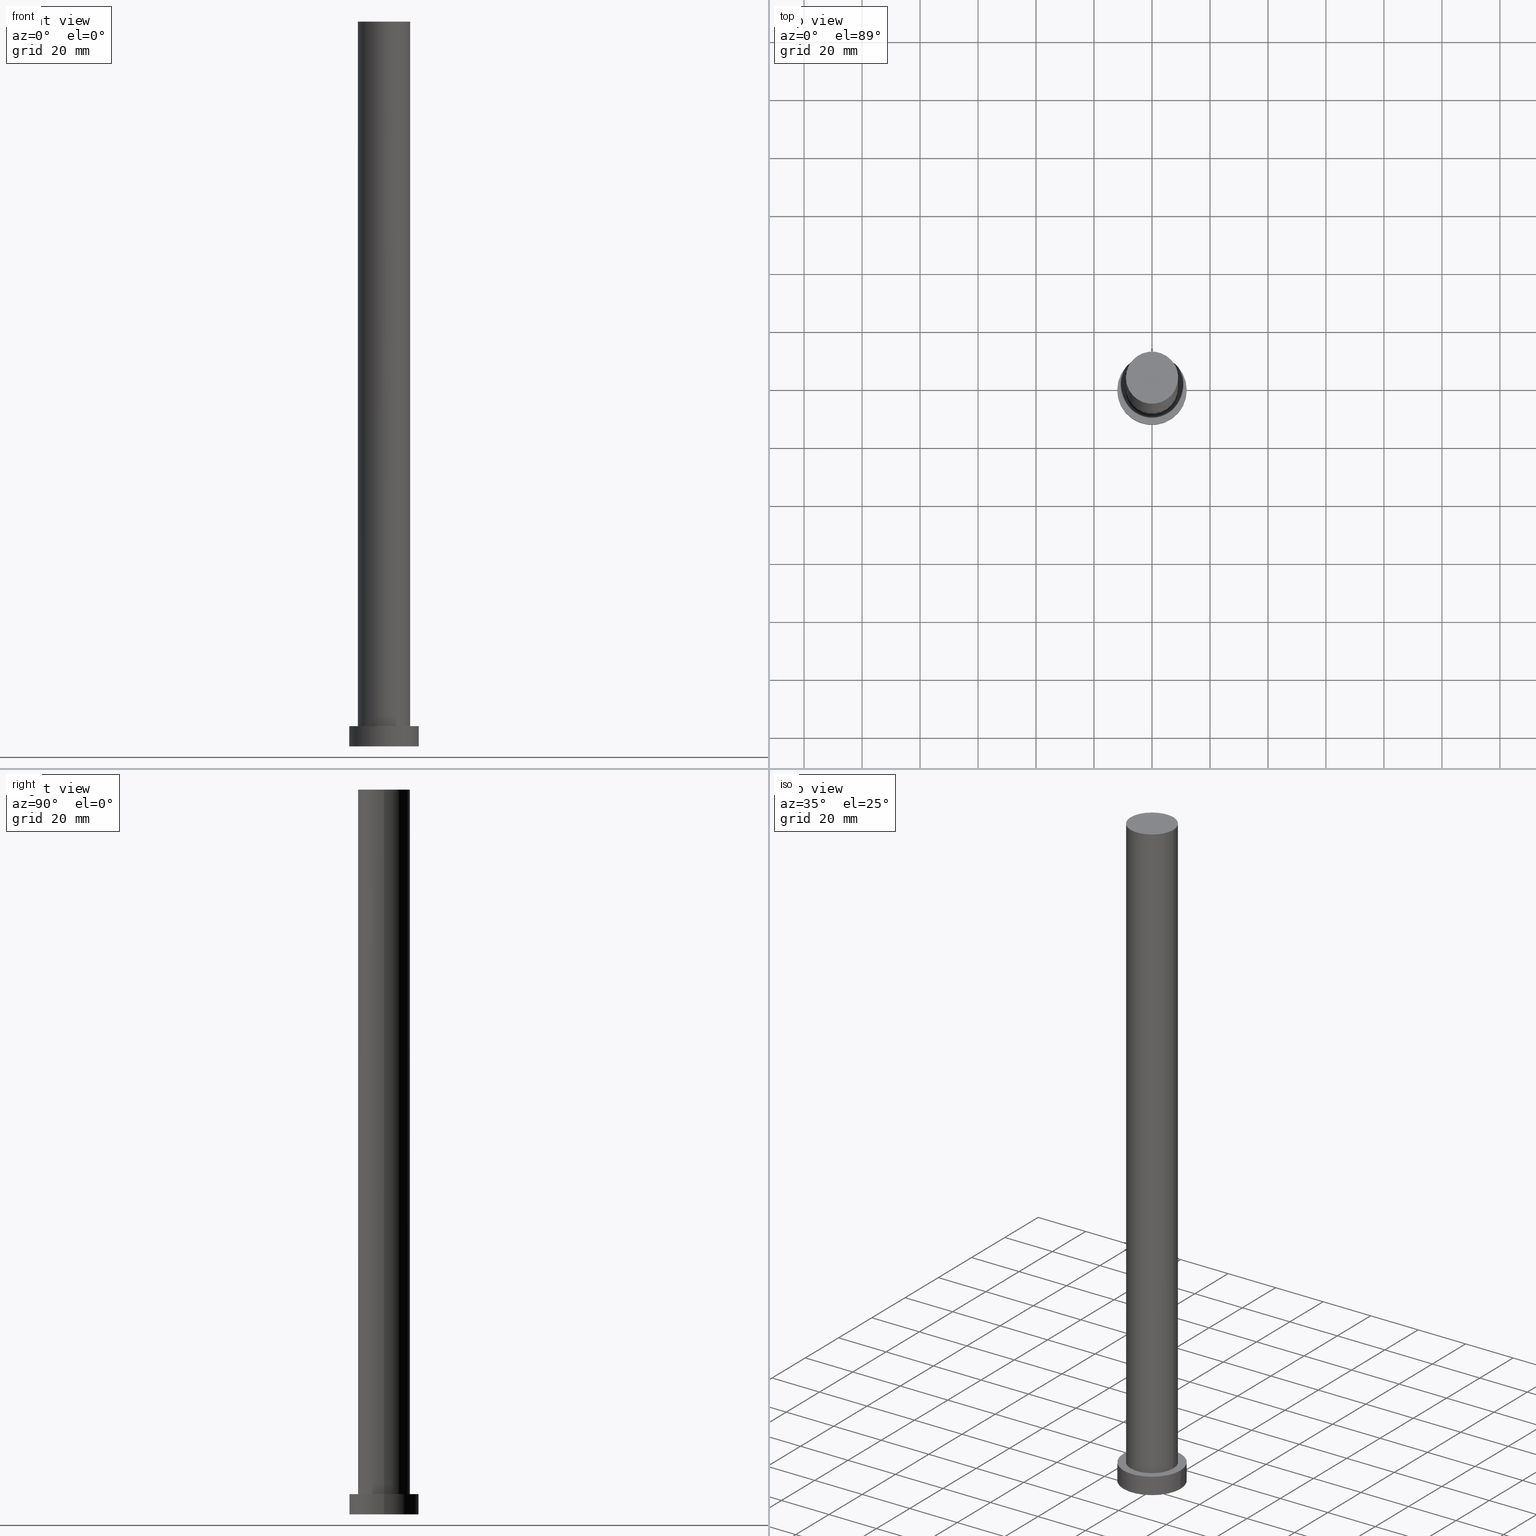
[diagram: canonical four-view strip — front | top / right | iso, engineering-drawing reading convention]
A machine part, canonical four-view strip (front | top / right | iso — engineering-drawing reading convention). The complete STEP part file that produces these views, byte-faithful:
ISO-10303-21;
HEADER;
FILE_DESCRIPTION (( 'STEP AP203' ),
    '1' );
FILE_NAME ('eefd.STEP',
    '2023-02-13T08:45:44',
    ( '' ),
    ( '' ),
    'SwSTEP 2.0',
    'SolidWorks 2019',
    '' );
FILE_SCHEMA (( 'CONFIG_CONTROL_DESIGN' ));
ENDSEC;

DATA;
#1 = DIRECTION ( 'NONE',  ( -0.000000000000000000, -0.000000000000000000, -1.000000000000000000 ) ) ;
#2 = CIRCLE ( 'NONE', #32, 9.000000000000001776 ) ;
#3 = FACE_OUTER_BOUND ( 'NONE', #53, .T. ) ;
#4 = DIRECTION ( 'NONE',  ( -0.000000000000000000, -0.000000000000000000, -1.000000000000000000 ) ) ;
#5 = APPROVAL ( #14, 'NEUR�EN�' ) ;
#6 = CARTESIAN_POINT ( 'NONE',  ( -12.00000000000000178, 0.000000000000000000, 7.000000000000000000 ) ) ;
#7 = CIRCLE ( 'NONE', #28, 9.000000000000001776 ) ;
#8 = COORDINATED_UNIVERSAL_TIME_OFFSET ( 1, 0, .AHEAD. ) ;
#9 = APPROVAL_ROLE ( '' ) ;
#10 = CARTESIAN_POINT ( 'NONE',  ( 0.000000000000000000, 0.000000000000000000, 0.000000000000000000 ) ) ;
#11 = CC_DESIGN_PERSON_AND_ORGANIZATION_ASSIGNMENT ( #209, #26, ( #185 ) ) ;
#12 = CC_DESIGN_APPROVAL ( #135, ( #110 ) ) ;
#13 = PERSON_AND_ORGANIZATION ( #202, #244 ) ;
#14 = APPROVAL_STATUS ( 'not_yet_approved' ) ;
#15 = EDGE_LOOP ( 'NONE', ( #17, #189, #97, #235 ) ) ;
#16 = ORIENTED_EDGE ( 'NONE', *, *, #214, .T. ) ;
#17 = ORIENTED_EDGE ( 'NONE', *, *, #149, .F. ) ;
#18 = DIRECTION ( 'NONE',  ( 1.000000000000000000, 0.000000000000000000, 0.000000000000000000 ) ) ;
#19 = EDGE_LOOP ( 'NONE', ( #216, #199 ) ) ;
#20 = PLANE ( 'NONE',  #204 ) ;
#21 = CARTESIAN_POINT ( 'NONE',  ( 0.000000000000000000, 0.000000000000000000, 7.000000000000000000 ) ) ;
#22 = LOCAL_TIME ( 9, 45, 44.00000000000000000, #29 ) ;
#23 = EDGE_CURVE ( 'NONE', #137, #114, #89, .T. ) ;
#24 = CARTESIAN_POINT ( 'NONE',  ( 12.00000000000000178, 1.469576158976824144E-15, 7.000000000000000000 ) ) ;
#25 = CIRCLE ( 'NONE', #52, 9.000000000000001776 ) ;
#26 = PERSON_AND_ORGANIZATION_ROLE ( 'creator' ) ;
#27 = APPROVAL_DATE_TIME ( #44, #135 ) ;
#28 = AXIS2_PLACEMENT_3D ( 'NONE', #242, #62, #142 ) ;
#29 = COORDINATED_UNIVERSAL_TIME_OFFSET ( 1, 0, .AHEAD. ) ;
#30 = APPLICATION_PROTOCOL_DEFINITION ( 'international standard', 'config_control_design', 1994, #87 ) ;
#31 = ORIENTED_EDGE ( 'NONE', *, *, #188, .F. ) ;
#32 = AXIS2_PLACEMENT_3D ( 'NONE', #70, #233, #117 ) ;
#33 = VERTEX_POINT ( 'NONE', #153 ) ;
#34 = PRODUCT ( 'eefd', 'eefd', '', ( #63 ) ) ;
#35 = DIRECTION ( 'NONE',  ( 1.000000000000000000, 0.000000000000000000, 0.000000000000000000 ) ) ;
#36 = DIRECTION ( 'NONE',  ( 1.000000000000000000, 0.000000000000000000, 0.000000000000000000 ) ) ;
#37 = AXIS2_PLACEMENT_3D ( 'NONE', #253, #96, #38 ) ;
#38 = DIRECTION ( 'NONE',  ( -1.000000000000000000, 0.000000000000000000, 0.000000000000000000 ) ) ;
#39 = ADVANCED_BREP_SHAPE_REPRESENTATION ( 'eefd', ( #115, #133 ), #208 ) ;
#40 = CARTESIAN_POINT ( 'NONE',  ( 0.000000000000000000, 0.000000000000000000, 250.0000000000000000 ) ) ;
#41 = CARTESIAN_POINT ( 'NONE',  ( -9.000000000000001776, 0.000000000000000000, 7.000000000000000000 ) ) ;
#42 = DIRECTION ( 'NONE',  ( -1.000000000000000000, 0.000000000000000000, 0.000000000000000000 ) ) ;
#43 = CARTESIAN_POINT ( 'NONE',  ( -12.00000000000000178, 0.000000000000000000, 7.000000000000000000 ) ) ;
#44 = DATE_AND_TIME ( #85, #150 ) ;
#45 = AXIS2_PLACEMENT_3D ( 'NONE', #254, #119, #223 ) ;
#46 = ADVANCED_FACE ( 'NONE', ( #170 ), #56, .T. ) ;
#47 = DATE_AND_TIME ( #205, #71 ) ;
#48 = EDGE_CURVE ( 'NONE', #154, #210, #2, .T. ) ;
#49 = ORIENTED_EDGE ( 'NONE', *, *, #23, .F. ) ;
#50 = ORIENTED_EDGE ( 'NONE', *, *, #214, .F. ) ;
#51 = EDGE_CURVE ( 'NONE', #231, #215, #168, .T. ) ;
#52 = AXIS2_PLACEMENT_3D ( 'NONE', #178, #245, #201 ) ;
#53 = EDGE_LOOP ( 'NONE', ( #50, #255, #187, #237 ) ) ;
#54 = EDGE_LOOP ( 'NONE', ( #163, #136, #252, #74 ) ) ;
#55 = EDGE_CURVE ( 'NONE', #33, #229, #228, .T. ) ;
#56 = CYLINDRICAL_SURFACE ( 'NONE', #37, 12.00000000000000178 ) ;
#57 = CARTESIAN_POINT ( 'NONE',  ( -9.000000000000001776, 0.000000000000000000, 250.0000000000000000 ) ) ;
#58 = CARTESIAN_POINT ( 'NONE',  ( -12.00000000000000178, 0.000000000000000000, 0.000000000000000000 ) ) ;
#59 = CYLINDRICAL_SURFACE ( 'NONE', #181, 9.000000000000001776 ) ;
#60 = CC_DESIGN_DATE_AND_TIME_ASSIGNMENT ( #250, #143, ( #110 ) ) ;
#61 = FACE_OUTER_BOUND ( 'NONE', #169, .T. ) ;
#62 = DIRECTION ( 'NONE',  ( 0.000000000000000000, 0.000000000000000000, 1.000000000000000000 ) ) ;
#63 = MECHANICAL_CONTEXT ( 'NONE', #75, 'mechanical' ) ;
#64 = APPROVAL_STATUS ( 'not_yet_approved' ) ;
#65 = AXIS2_PLACEMENT_3D ( 'NONE', #180, #99, #138 ) ;
#66 = DATE_AND_TIME ( #126, #232 ) ;
#67 = ADVANCED_FACE ( 'NONE', ( #95, #173 ), #171, .T. ) ;
#68 = APPROVAL_STATUS ( 'not_yet_approved' ) ;
#69 = CARTESIAN_POINT ( 'NONE',  ( 0.000000000000000000, 0.000000000000000000, 7.000000000000000000 ) ) ;
#70 = CARTESIAN_POINT ( 'NONE',  ( 0.000000000000000000, 0.000000000000000000, 7.000000000000000000 ) ) ;
#71 = LOCAL_TIME ( 9, 45, 44.00000000000000000, #227 ) ;
#72 = ORIENTED_EDGE ( 'NONE', *, *, #51, .T. ) ;
#73 = CC_DESIGN_PERSON_AND_ORGANIZATION_ASSIGNMENT ( #166, #106, ( #34 ) ) ;
#74 = ORIENTED_EDGE ( 'NONE', *, *, #224, .F. ) ;
#75 = APPLICATION_CONTEXT ( 'configuration controlled 3d designs of mechanical parts and assemblies' ) ;
#76 = DIRECTION ( 'NONE',  ( 0.000000000000000000, 0.000000000000000000, 1.000000000000000000 ) ) ;
#77 = VECTOR ( 'NONE', #4, 1000.000000000000000 ) ;
#78 = DIRECTION ( 'NONE',  ( 0.000000000000000000, 0.000000000000000000, 1.000000000000000000 ) ) ;
#79 = DIRECTION ( 'NONE',  ( -0.000000000000000000, -0.000000000000000000, -1.000000000000000000 ) ) ;
#80 = ADVANCED_FACE ( 'NONE', ( #3 ), #162, .T. ) ;
#81 = FACE_OUTER_BOUND ( 'NONE', #248, .T. ) ;
#82 = DIRECTION ( 'NONE',  ( 1.000000000000000000, 0.000000000000000000, 0.000000000000000000 ) ) ;
#83 = LOCAL_TIME ( 9, 45, 44.00000000000000000, #8 ) ;
#84 = DATE_TIME_ROLE ( 'creation_date' ) ;
#85 = CALENDAR_DATE ( 2023, 13, 2 ) ;
#86 = SHAPE_DEFINITION_REPRESENTATION ( #177, #39 ) ;
#87 = APPLICATION_CONTEXT ( 'configuration controlled 3d designs of mechanical parts and assemblies' ) ;
#88 = APPROVAL_PERSON_ORGANIZATION ( #129, #5, #9 ) ;
#89 = CIRCLE ( 'NONE', #172, 12.00000000000000178 ) ;
#90 = DATE_AND_TIME ( #183, #83 ) ;
#91 = PRODUCT_RELATED_PRODUCT_CATEGORY ( 'detail', '', ( #34 ) ) ;
#92 = AXIS2_PLACEMENT_3D ( 'NONE', #121, #159, #42 ) ;
#93 = ORIENTED_EDGE ( 'NONE', *, *, #226, .T. ) ;
#94 = EDGE_LOOP ( 'NONE', ( #31, #49, #151, #93 ) ) ;
#95 = FACE_BOUND ( 'NONE', #19, .T. ) ;
#96 = DIRECTION ( 'NONE',  ( -0.000000000000000000, -0.000000000000000000, -1.000000000000000000 ) ) ;
#97 = ORIENTED_EDGE ( 'NONE', *, *, #224, .T. ) ;
#98 = DESIGN_CONTEXT ( 'detailed design', #87, 'design' ) ;
#99 = DIRECTION ( 'NONE',  ( -0.000000000000000000, -0.000000000000000000, -1.000000000000000000 ) ) ;
#100 = DIRECTION ( 'NONE',  ( 1.000000000000000000, 0.000000000000000000, -0.000000000000000000 ) ) ;
#101 = CARTESIAN_POINT ( 'NONE',  ( 0.000000000000000000, 0.000000000000000000, 250.0000000000000000 ) ) ;
#102 = CYLINDRICAL_SURFACE ( 'NONE', #92, 9.000000000000001776 ) ;
#103 = ADVANCED_FACE ( 'NONE', ( #219 ), #59, .T. ) ;
#104 = DIRECTION ( 'NONE',  ( -0.000000000000000000, -0.000000000000000000, -1.000000000000000000 ) ) ;
#105 = AXIS2_PLACEMENT_3D ( 'NONE', #21, #76, #82 ) ;
#106 = PERSON_AND_ORGANIZATION_ROLE ( 'design_owner' ) ;
#107 = PERSON_AND_ORGANIZATION ( #202, #244 ) ;
#108 = DIRECTION ( 'NONE',  ( 1.000000000000000000, 0.000000000000000000, 0.000000000000000000 ) ) ;
#109 = EDGE_CURVE ( 'NONE', #137, #229, #174, .T. ) ;
#110 = SECURITY_CLASSIFICATION ( '', '', #206 ) ;
#111 = PERSON_AND_ORGANIZATION ( #202, #244 ) ;
#112 = PERSON_AND_ORGANIZATION_ROLE ( 'creator' ) ;
#113 = CC_DESIGN_APPROVAL ( #198, ( #185 ) ) ;
#114 = VERTEX_POINT ( 'NONE', #140 ) ;
#115 = MANIFOLD_SOLID_BREP ( 'P�idat vysunut�m3', #145 ) ;
#116 = CARTESIAN_POINT ( 'NONE',  ( 0.000000000000000000, 0.000000000000000000, 0.000000000000000000 ) ) ;
#117 = DIRECTION ( 'NONE',  ( 1.000000000000000000, 0.000000000000000000, 0.000000000000000000 ) ) ;
#118 = ADVANCED_FACE ( 'NONE', ( #81 ), #20, .F. ) ;
#119 = DIRECTION ( 'NONE',  ( 0.000000000000000000, 0.000000000000000000, 1.000000000000000000 ) ) ;
#120 = LINE ( 'NONE', #24, #77 ) ;
#121 = CARTESIAN_POINT ( 'NONE',  ( 0.000000000000000000, 0.000000000000000000, 250.0000000000000000 ) ) ;
#122 = APPROVAL_PERSON_ORGANIZATION ( #207, #198, #167 ) ;
#123 = PLANE ( 'NONE',  #212 ) ;
#124 = CC_DESIGN_DATE_AND_TIME_ASSIGNMENT ( #90, #84, ( #203 ) ) ;
#125 = LINE ( 'NONE', #238, #175 ) ;
#126 = CALENDAR_DATE ( 2023, 13, 2 ) ;
#127 = VECTOR ( 'NONE', #104, 1000.000000000000000 ) ;
#128 = COORDINATED_UNIVERSAL_TIME_OFFSET ( 1, 0, .AHEAD. ) ;
#129 = PERSON_AND_ORGANIZATION ( #202, #244 ) ;
#130 = PERSON_AND_ORGANIZATION_ROLE ( 'classification_officer' ) ;
#131 = EDGE_LOOP ( 'NONE', ( #134, #16 ) ) ;
#132 = ORIENTED_EDGE ( 'NONE', *, *, #226, .F. ) ;
#133 = AXIS2_PLACEMENT_3D ( 'NONE', #10, #144, #108 ) ;
#134 = ORIENTED_EDGE ( 'NONE', *, *, #23, .T. ) ;
#135 = APPROVAL ( #64, 'NEUR�EN�' ) ;
#136 = ORIENTED_EDGE ( 'NONE', *, *, #149, .T. ) ;
#137 = VERTEX_POINT ( 'NONE', #6 ) ;
#138 = DIRECTION ( 'NONE',  ( -1.000000000000000000, 0.000000000000000000, 0.000000000000000000 ) ) ;
#139 = LINE ( 'NONE', #57, #192 ) ;
#140 = CARTESIAN_POINT ( 'NONE',  ( 12.00000000000000178, 1.469576158976824144E-15, 7.000000000000000000 ) ) ;
#141 = DIRECTION ( 'NONE',  ( 1.000000000000000000, 0.000000000000000000, -0.000000000000000000 ) ) ;
#142 = DIRECTION ( 'NONE',  ( 1.000000000000000000, 0.000000000000000000, 0.000000000000000000 ) ) ;
#143 = DATE_TIME_ROLE ( 'classification_date' ) ;
#144 = DIRECTION ( 'NONE',  ( 0.000000000000000000, 0.000000000000000000, 1.000000000000000000 ) ) ;
#145 = CLOSED_SHELL ( 'NONE', ( #103, #80, #46, #67, #118, #241, #236 ) ) ;
#146 = CALENDAR_DATE ( 2023, 13, 2 ) ;
#147 = APPROVAL_DATE_TIME ( #66, #5 ) ;
#148 = APPROVAL_DATE_TIME ( #47, #198 ) ;
#149 = EDGE_CURVE ( 'NONE', #231, #154, #125, .T. ) ;
#150 = LOCAL_TIME ( 9, 45, 44.00000000000000000, #128 ) ;
#151 = ORIENTED_EDGE ( 'NONE', *, *, #109, .T. ) ;
#152 = DIRECTION ( 'NONE',  ( 0.000000000000000000, 0.000000000000000000, 1.000000000000000000 ) ) ;
#153 = CARTESIAN_POINT ( 'NONE',  ( 12.00000000000000178, 1.469576158976824144E-15, 0.000000000000000000 ) ) ;
#154 = VERTEX_POINT ( 'NONE', #196 ) ;
#155 = EDGE_CURVE ( 'NONE', #215, #231, #25, .T. ) ;
#156 = CARTESIAN_POINT ( 'NONE',  ( 0.000000000000000000, 0.000000000000000000, 0.000000000000000000 ) ) ;
#157 = APPROVAL_PERSON_ORGANIZATION ( #111, #135, #225 ) ;
#158 = UNCERTAINTY_MEASURE_WITH_UNIT (LENGTH_MEASURE( 1.000000000000000082E-05 ), #222, 'distance_accuracy_value', 'NONE');
#159 = DIRECTION ( 'NONE',  ( -0.000000000000000000, -0.000000000000000000, -1.000000000000000000 ) ) ;
#160 = DIRECTION ( 'NONE',  ( -1.000000000000000000, 0.000000000000000000, 0.000000000000000000 ) ) ;
#161 = CARTESIAN_POINT ( 'NONE',  ( -9.000000000000001776, 0.000000000000000000, 250.0000000000000000 ) ) ;
#162 = CYLINDRICAL_SURFACE ( 'NONE', #65, 12.00000000000000178 ) ;
#163 = ORIENTED_EDGE ( 'NONE', *, *, #51, .F. ) ;
#164 = APPLICATION_PROTOCOL_DEFINITION ( 'international standard', 'config_control_design', 1994, #75 ) ;
#165 = CC_DESIGN_SECURITY_CLASSIFICATION ( #110, ( #185 ) ) ;
#166 = PERSON_AND_ORGANIZATION ( #202, #244 ) ;
#167 = APPROVAL_ROLE ( '' ) ;
#168 = CIRCLE ( 'NONE', #234, 9.000000000000001776 ) ;
#169 = EDGE_LOOP ( 'NONE', ( #194, #72 ) ) ;
#170 = FACE_OUTER_BOUND ( 'NONE', #94, .T. ) ;
#171 = PLANE ( 'NONE',  #45 ) ;
#172 = AXIS2_PLACEMENT_3D ( 'NONE', #69, #152, #36 ) ;
#173 = FACE_OUTER_BOUND ( 'NONE', #131, .T. ) ;
#174 = LINE ( 'NONE', #43, #127 ) ;
#175 = VECTOR ( 'NONE', #182, 1000.000000000000000 ) ;
#176 = FACE_OUTER_BOUND ( 'NONE', #15, .T. ) ;
#177 = PRODUCT_DEFINITION_SHAPE ( 'NONE', 'NONE',  #203 ) ;
#178 = CARTESIAN_POINT ( 'NONE',  ( 0.000000000000000000, 0.000000000000000000, 250.0000000000000000 ) ) ;
#179 = CC_DESIGN_PERSON_AND_ORGANIZATION_ASSIGNMENT ( #13, #112, ( #203 ) ) ;
#180 = CARTESIAN_POINT ( 'NONE',  ( 0.000000000000000000, 0.000000000000000000, 7.000000000000000000 ) ) ;
#181 = AXIS2_PLACEMENT_3D ( 'NONE', #101, #79, #160 ) ;
#182 = DIRECTION ( 'NONE',  ( -0.000000000000000000, -0.000000000000000000, -1.000000000000000000 ) ) ;
#183 = CALENDAR_DATE ( 2023, 13, 2 ) ;
#184 =( NAMED_UNIT ( * ) SI_UNIT ( $, .STERADIAN. ) SOLID_ANGLE_UNIT ( ) );
#185 = PRODUCT_DEFINITION_FORMATION_WITH_SPECIFIED_SOURCE ( 'LIBOVOLN�', '', #34, .NOT_KNOWN. ) ;
#186 = PERSON_AND_ORGANIZATION ( #202, #244 ) ;
#187 = ORIENTED_EDGE ( 'NONE', *, *, #55, .T. ) ;
#188 = EDGE_CURVE ( 'NONE', #114, #33, #120, .T. ) ;
#189 = ORIENTED_EDGE ( 'NONE', *, *, #155, .F. ) ;
#190 = DIRECTION ( 'NONE',  ( 0.000000000000000000, 0.000000000000000000, 1.000000000000000000 ) ) ;
#191 = DIRECTION ( 'NONE',  ( 0.000000000000000000, 0.000000000000000000, 1.000000000000000000 ) ) ;
#192 = VECTOR ( 'NONE', #1, 1000.000000000000000 ) ;
#193 = EDGE_CURVE ( 'NONE', #210, #154, #7, .T. ) ;
#194 = ORIENTED_EDGE ( 'NONE', *, *, #155, .T. ) ;
#195 = DIRECTION ( 'NONE',  ( 0.000000000000000000, 0.000000000000000000, 1.000000000000000000 ) ) ;
#196 = CARTESIAN_POINT ( 'NONE',  ( 9.000000000000001776, 1.102182119232617911E-15, 7.000000000000000000 ) ) ;
#197 = CIRCLE ( 'NONE', #217, 12.00000000000000178 ) ;
#198 = APPROVAL ( #68, 'NEUR�EN�' ) ;
#199 = ORIENTED_EDGE ( 'NONE', *, *, #48, .F. ) ;
#200 =( NAMED_UNIT ( * ) PLANE_ANGLE_UNIT ( ) SI_UNIT ( $, .RADIAN. ) );
#201 = DIRECTION ( 'NONE',  ( 1.000000000000000000, 0.000000000000000000, 0.000000000000000000 ) ) ;
#202 = PERSON ( 'NEUR�EN�', 'NEUR�EN�', 'NEUR�EN�', ('NEUR�EN�'), ('NEUR�EN�'), ('NEUR�EN�') ) ;
#203 = PRODUCT_DEFINITION ( 'NEZN�M�', '', #185, #98 ) ;
#204 = AXIS2_PLACEMENT_3D ( 'NONE', #156, #195, #100 ) ;
#205 = CALENDAR_DATE ( 2023, 13, 2 ) ;
#206 = SECURITY_CLASSIFICATION_LEVEL ( 'unclassified' ) ;
#207 = PERSON_AND_ORGANIZATION ( #202, #244 ) ;
#208 =( GEOMETRIC_REPRESENTATION_CONTEXT ( 3 ) GLOBAL_UNCERTAINTY_ASSIGNED_CONTEXT ( ( #158 ) ) GLOBAL_UNIT_ASSIGNED_CONTEXT ( ( #222, #200, #184 ) ) REPRESENTATION_CONTEXT ( 'NONE', 'WORKASPACE' ) );
#209 = PERSON_AND_ORGANIZATION ( #202, #244 ) ;
#210 = VERTEX_POINT ( 'NONE', #41 ) ;
#211 = ORIENTED_EDGE ( 'NONE', *, *, #55, .F. ) ;
#212 = AXIS2_PLACEMENT_3D ( 'NONE', #40, #78, #141 ) ;
#213 = CARTESIAN_POINT ( 'NONE',  ( 0.000000000000000000, 0.000000000000000000, 250.0000000000000000 ) ) ;
#214 = EDGE_CURVE ( 'NONE', #114, #137, #249, .T. ) ;
#215 = VERTEX_POINT ( 'NONE', #161 ) ;
#216 = ORIENTED_EDGE ( 'NONE', *, *, #193, .F. ) ;
#217 = AXIS2_PLACEMENT_3D ( 'NONE', #240, #243, #218 ) ;
#218 = DIRECTION ( 'NONE',  ( 1.000000000000000000, 0.000000000000000000, 0.000000000000000000 ) ) ;
#219 = FACE_OUTER_BOUND ( 'NONE', #54, .T. ) ;
#220 = CC_DESIGN_PERSON_AND_ORGANIZATION_ASSIGNMENT ( #107, #130, ( #110 ) ) ;
#221 = CARTESIAN_POINT ( 'NONE',  ( 9.000000000000001776, 1.102182119232617911E-15, 250.0000000000000000 ) ) ;
#222 =( LENGTH_UNIT ( ) NAMED_UNIT ( * ) SI_UNIT ( .MILLI., .METRE. ) );
#223 = DIRECTION ( 'NONE',  ( 1.000000000000000000, 0.000000000000000000, -0.000000000000000000 ) ) ;
#224 = EDGE_CURVE ( 'NONE', #215, #210, #139, .T. ) ;
#225 = APPROVAL_ROLE ( '' ) ;
#226 = EDGE_CURVE ( 'NONE', #229, #33, #197, .T. ) ;
#227 = COORDINATED_UNIVERSAL_TIME_OFFSET ( 1, 0, .AHEAD. ) ;
#228 = CIRCLE ( 'NONE', #239, 12.00000000000000178 ) ;
#229 = VERTEX_POINT ( 'NONE', #58 ) ;
#230 = CC_DESIGN_PERSON_AND_ORGANIZATION_ASSIGNMENT ( #186, #246, ( #185 ) ) ;
#231 = VERTEX_POINT ( 'NONE', #221 ) ;
#232 = LOCAL_TIME ( 9, 45, 44.00000000000000000, #247 ) ;
#233 = DIRECTION ( 'NONE',  ( 0.000000000000000000, 0.000000000000000000, 1.000000000000000000 ) ) ;
#234 = AXIS2_PLACEMENT_3D ( 'NONE', #213, #191, #35 ) ;
#235 = ORIENTED_EDGE ( 'NONE', *, *, #193, .T. ) ;
#236 = ADVANCED_FACE ( 'NONE', ( #61 ), #123, .T. ) ;
#237 = ORIENTED_EDGE ( 'NONE', *, *, #109, .F. ) ;
#238 = CARTESIAN_POINT ( 'NONE',  ( 9.000000000000001776, 1.102182119232617911E-15, 250.0000000000000000 ) ) ;
#239 = AXIS2_PLACEMENT_3D ( 'NONE', #116, #190, #18 ) ;
#240 = CARTESIAN_POINT ( 'NONE',  ( 0.000000000000000000, 0.000000000000000000, 0.000000000000000000 ) ) ;
#241 = ADVANCED_FACE ( 'NONE', ( #176 ), #102, .T. ) ;
#242 = CARTESIAN_POINT ( 'NONE',  ( 0.000000000000000000, 0.000000000000000000, 7.000000000000000000 ) ) ;
#243 = DIRECTION ( 'NONE',  ( 0.000000000000000000, 0.000000000000000000, 1.000000000000000000 ) ) ;
#244 = ORGANIZATION ( 'NEUR�EN�', 'NEUR�EN�', '' ) ;
#245 = DIRECTION ( 'NONE',  ( 0.000000000000000000, 0.000000000000000000, 1.000000000000000000 ) ) ;
#246 = PERSON_AND_ORGANIZATION_ROLE ( 'design_supplier' ) ;
#247 = COORDINATED_UNIVERSAL_TIME_OFFSET ( 1, 0, .AHEAD. ) ;
#248 = EDGE_LOOP ( 'NONE', ( #132, #211 ) ) ;
#249 = CIRCLE ( 'NONE', #105, 12.00000000000000178 ) ;
#250 = DATE_AND_TIME ( #146, #22 ) ;
#251 = CC_DESIGN_APPROVAL ( #5, ( #203 ) ) ;
#252 = ORIENTED_EDGE ( 'NONE', *, *, #48, .T. ) ;
#253 = CARTESIAN_POINT ( 'NONE',  ( 0.000000000000000000, 0.000000000000000000, 7.000000000000000000 ) ) ;
#254 = CARTESIAN_POINT ( 'NONE',  ( 0.000000000000000000, 0.000000000000000000, 7.000000000000000000 ) ) ;
#255 = ORIENTED_EDGE ( 'NONE', *, *, #188, .T. ) ;
ENDSEC;
END-ISO-10303-21;
